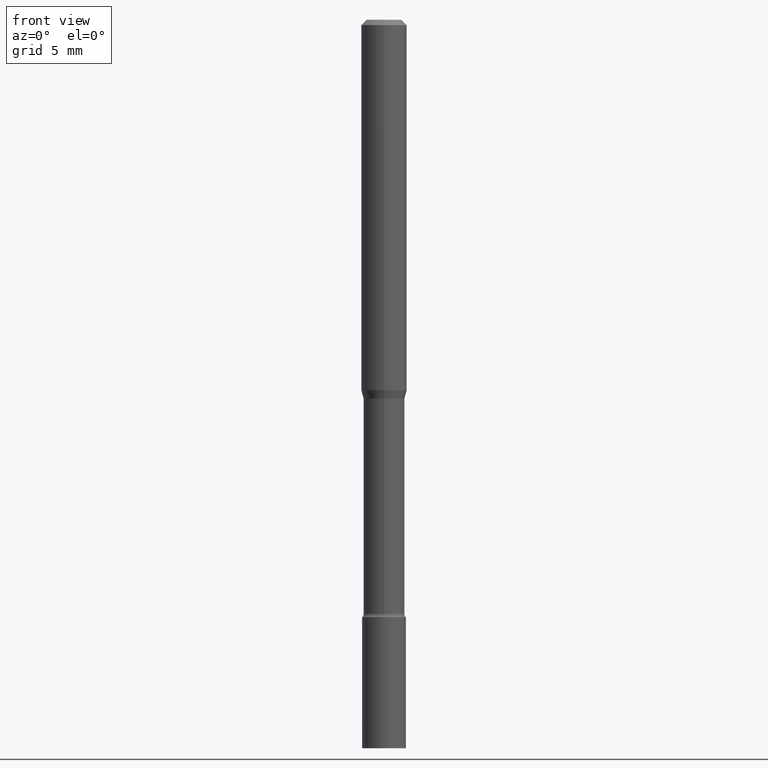
[diagram: clean part render]
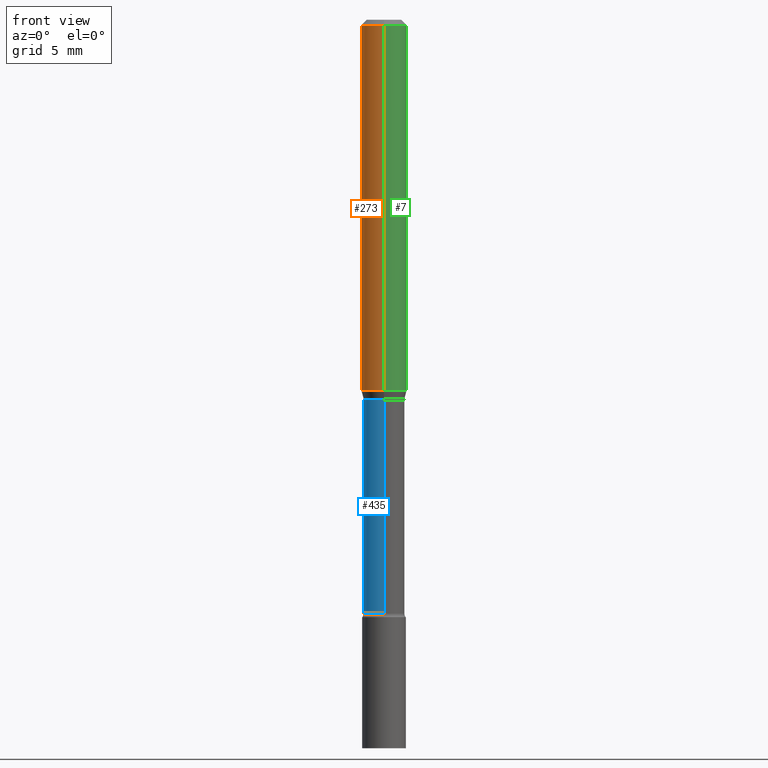
[diagram: same view with three faces highlighted in distinct colors, each labeled with its STEP entity id]
A machine part, front view with three faces highlighted in distinct colors.
Their STEP definitions:

[orange] entity #273 — the highlighted cylindrical surface (edge-blend (fillet) strip) has radius 1.5875 mm, axis along (-0, 0, 1).
#31 = VECTOR ( 'NONE', #113, 39.37007874015748143 ) ;
#48 = LINE ( 'NONE', #346, #31 ) ;
#53 = VERTEX_POINT ( 'NONE', #389 ) ;
#64 = VERTEX_POINT ( 'NONE', #88 ) ;
#75 = FACE_OUTER_BOUND ( 'NONE', #264, .T. ) ;
#76 = EDGE_CURVE ( 'NONE', #53, #87, #207, .T. ) ;
#79 = CARTESIAN_POINT ( 'NONE',  ( 4.440892098500625669E-16, 0.06250000000000000000, -2.181659480106094672E-16 ) ) ;
#87 = VERTEX_POINT ( 'NONE', #159 ) ;
#88 = CARTESIAN_POINT ( 'NONE',  ( -4.364351673553912750E-16, -0.06250000000000005551, -0.01499999999999981209 ) ) ;
#103 = DIRECTION ( 'NONE',  ( -2.446045718082907683E-29, 3.490655168169751476E-15, 1.000000000000000000 ) ) ;
#113 = DIRECTION ( 'NONE',  ( -2.446045718082907683E-29, 3.490655168169751476E-15, 1.000000000000000000 ) ) ;
#127 = ORIENTED_EDGE ( 'NONE', *, *, #76, .T. ) ;
#128 = ORIENTED_EDGE ( 'NONE', *, *, #314, .F. ) ;
#157 = DIRECTION ( 'NONE',  ( -2.446045718082907683E-29, 3.490655168169751476E-15, 1.000000000000000000 ) ) ;
#159 = CARTESIAN_POINT ( 'NONE',  ( -4.364351673553668203E-16, -0.06250000000000355271, -1.017234490073829489 ) ) ;
#162 = CARTESIAN_POINT ( 'NONE',  ( 4.440892098500875639E-16, 0.06249999999999995143, -0.01500000000000024751 ) ) ;
#188 = CARTESIAN_POINT ( 'NONE',  ( 0.000000000000000000, 0.000000000000000000, 0.000000000000000000 ) ) ;
#195 = EDGE_CURVE ( 'NONE', #53, #215, #330, .T. ) ;
#203 = DIRECTION ( 'NONE',  ( -2.446045718082907683E-29, 3.490655168169751476E-15, 1.000000000000000000 ) ) ;
#207 = CIRCLE ( 'NONE', #520, 0.06250000000000000000 ) ;
#215 = VERTEX_POINT ( 'NONE', #162 ) ;
#227 = DIRECTION ( 'NONE',  ( -6.982962677686265922E-15, -1.000000000000000000, 4.370956789862821150E-15 ) ) ;
#264 = EDGE_LOOP ( 'NONE', ( #462, #127, #465, #128 ) ) ;
#270 = EDGE_CURVE ( 'NONE', #87, #64, #48, .T. ) ;
#273 = ADVANCED_FACE ( 'NONE', ( #75 ), #399, .T. ) ;
#280 = DIRECTION ( 'NONE',  ( -2.446045718082907683E-29, 3.490655168169751476E-15, 1.000000000000000000 ) ) ;
#314 = EDGE_CURVE ( 'NONE', #215, #64, #344, .T. ) ;
#316 = AXIS2_PLACEMENT_3D ( 'NONE', #418, #203, #415 ) ;
#330 = LINE ( 'NONE', #79, #395 ) ;
#335 = AXIS2_PLACEMENT_3D ( 'NONE', #188, #157, #458 ) ;
#344 = CIRCLE ( 'NONE', #316, 0.06250000000000000000 ) ;
#346 = CARTESIAN_POINT ( 'NONE',  ( -4.364351673553916201E-16, -0.06250000000000000000, 2.181659480106094672E-16 ) ) ;
#357 = CARTESIAN_POINT ( 'NONE',  ( 2.488202068731341388E-29, -3.550814830016735808E-15, -1.017234490073829711 ) ) ;
#389 = CARTESIAN_POINT ( 'NONE',  ( 4.440892098500872681E-16, 0.06249999999999643341, -1.017234490073830155 ) ) ;
#395 = VECTOR ( 'NONE', #103, 39.37007874015748143 ) ;
#399 = CYLINDRICAL_SURFACE ( 'NONE', #335, 0.06250000000000000000 ) ;
#415 = DIRECTION ( 'NONE',  ( -6.982962677686265922E-15, -1.000000000000000000, 3.483106191921935554E-15 ) ) ;
#418 = CARTESIAN_POINT ( 'NONE',  ( 3.669068577124369092E-31, -5.235982752254638011E-17, -0.01500000000000003067 ) ) ;
#458 = DIRECTION ( 'NONE',  ( -6.982962677686265922E-15, -1.000000000000000000, 3.490655168169751476E-15 ) ) ;
#462 = ORIENTED_EDGE ( 'NONE', *, *, #195, .F. ) ;
#465 = ORIENTED_EDGE ( 'NONE', *, *, #270, .T. ) ;
#520 = AXIS2_PLACEMENT_3D ( 'NONE', #357, #280, #227 ) ;

[blue] entity #435 — the highlighted cylindrical surface (edge-blend (fillet) strip) has radius 1.4326 mm, axis along (-0, 0, 1).
#8 = CARTESIAN_POINT ( 'NONE',  ( 3.987668854432127938E-29, -5.690644615826130312E-15, -1.630251153914436868 ) ) ;
#15 = CIRCLE ( 'NONE', #341, 0.05640000000000004732 ) ;
#35 = VERTEX_POINT ( 'NONE', #41 ) ;
#41 = CARTESIAN_POINT ( 'NONE',  ( 4.007461029687364320E-16, 0.05639999999999635583, -1.041974787463811003 ) ) ;
#57 = CARTESIAN_POINT ( 'NONE',  ( 4.007461029686965945E-16, 0.05640000000000001956, -1.968729514847740461E-16 ) ) ;
#84 = DIRECTION ( 'NONE',  ( -2.446045718082907683E-29, 3.490655168169751476E-15, 1.000000000000000000 ) ) ;
#95 = LINE ( 'NONE', #57, #307 ) ;
#99 = ORIENTED_EDGE ( 'NONE', *, *, #151, .F. ) ;
#123 = CARTESIAN_POINT ( 'NONE',  ( 0.000000000000000000, 0.000000000000000000, 0.000000000000000000 ) ) ;
#141 = AXIS2_PLACEMENT_3D ( 'NONE', #123, #84, #283 ) ;
#151 = EDGE_CURVE ( 'NONE', #446, #35, #95, .T. ) ;
#161 = DIRECTION ( 'NONE',  ( -2.446045718082907683E-29, 3.490655168169751476E-15, 1.000000000000000000 ) ) ;
#168 = EDGE_CURVE ( 'NONE', #446, #181, #15, .T. ) ;
#173 = EDGE_LOOP ( 'NONE', ( #99, #257, #516, #249 ) ) ;
#181 = VERTEX_POINT ( 'NONE', #450 ) ;
#194 = CARTESIAN_POINT ( 'NONE',  ( -3.938390950214798652E-16, -0.05640000000000363473, -1.041974787463810781 ) ) ;
#204 = DIRECTION ( 'NONE',  ( -2.446045718082907683E-29, 3.490655168169751476E-15, 1.000000000000000000 ) ) ;
#216 = CYLINDRICAL_SURFACE ( 'NONE', #141, 0.05640000000000001956 ) ;
#229 = CIRCLE ( 'NONE', #472, 0.05639999999999999181 ) ;
#249 = ORIENTED_EDGE ( 'NONE', *, *, #368, .F. ) ;
#257 = ORIENTED_EDGE ( 'NONE', *, *, #168, .T. ) ;
#278 = CARTESIAN_POINT ( 'NONE',  ( 2.548717967226202365E-29, -3.637174676963129904E-15, -1.041974787463810781 ) ) ;
#283 = DIRECTION ( 'NONE',  ( -6.982962677686265133E-15, -1.000000000000000000, 3.490655168169751476E-15 ) ) ;
#285 = VERTEX_POINT ( 'NONE', #194 ) ;
#307 = VECTOR ( 'NONE', #204, 39.37007874015748143 ) ;
#315 = LINE ( 'NONE', #349, #430 ) ;
#341 = AXIS2_PLACEMENT_3D ( 'NONE', #8, #161, #406 ) ;
#349 = CARTESIAN_POINT ( 'NONE',  ( -3.938390950215055032E-16, -0.05640000000000001956, 1.968729514847740461E-16 ) ) ;
#361 = CARTESIAN_POINT ( 'NONE',  ( 4.135358722124184538E-16, 0.05639999999999435049, -1.630251153914437090 ) ) ;
#367 = DIRECTION ( 'NONE',  ( -6.982962677686265922E-15, -1.000000000000000000, 2.421851058212999609E-15 ) ) ;
#368 = EDGE_CURVE ( 'NONE', #35, #285, #229, .T. ) ;
#400 = EDGE_CURVE ( 'NONE', #181, #285, #315, .T. ) ;
#406 = DIRECTION ( 'NONE',  ( -6.982962677686265133E-15, -1.000000000000000000, 4.843702116425994485E-15 ) ) ;
#430 = VECTOR ( 'NONE', #473, 39.37007874015748143 ) ;
#435 = ADVANCED_FACE ( 'NONE', ( #439 ), #216, .T. ) ;
#439 = FACE_OUTER_BOUND ( 'NONE', #173, .T. ) ;
#446 = VERTEX_POINT ( 'NONE', #361 ) ;
#450 = CARTESIAN_POINT ( 'NONE',  ( -3.938390950214658630E-16, -0.05640000000000573721, -1.630251153914436646 ) ) ;
#452 = DIRECTION ( 'NONE',  ( -2.446045718082907683E-29, 3.490655168169751476E-15, 1.000000000000000000 ) ) ;
#472 = AXIS2_PLACEMENT_3D ( 'NONE', #278, #452, #367 ) ;
#473 = DIRECTION ( 'NONE',  ( -2.446045718082907683E-29, 3.490655168169751476E-15, 1.000000000000000000 ) ) ;
#516 = ORIENTED_EDGE ( 'NONE', *, *, #400, .T. ) ;

[green] entity #7 — the highlighted cylindrical surface (edge-blend (fillet) strip) has radius 1.5875 mm, axis along (-0, 0, 1).
#2 = CARTESIAN_POINT ( 'NONE',  ( 0.000000000000000000, 0.000000000000000000, 0.000000000000000000 ) ) ;
#7 = ADVANCED_FACE ( 'NONE', ( #148 ), #186, .T. ) ;
#12 = DIRECTION ( 'NONE',  ( -2.446045718082907683E-29, 3.490655168169751476E-15, 1.000000000000000000 ) ) ;
#31 = VECTOR ( 'NONE', #113, 39.37007874015748143 ) ;
#48 = LINE ( 'NONE', #346, #31 ) ;
#53 = VERTEX_POINT ( 'NONE', #389 ) ;
#64 = VERTEX_POINT ( 'NONE', #88 ) ;
#70 = ORIENTED_EDGE ( 'NONE', *, *, #319, .F. ) ;
#79 = CARTESIAN_POINT ( 'NONE',  ( 4.440892098500625669E-16, 0.06250000000000000000, -2.181659480106094672E-16 ) ) ;
#87 = VERTEX_POINT ( 'NONE', #159 ) ;
#88 = CARTESIAN_POINT ( 'NONE',  ( -4.364351673553912750E-16, -0.06250000000000005551, -0.01499999999999981209 ) ) ;
#96 = ORIENTED_EDGE ( 'NONE', *, *, #195, .T. ) ;
#103 = DIRECTION ( 'NONE',  ( -2.446045718082907683E-29, 3.490655168169751476E-15, 1.000000000000000000 ) ) ;
#109 = CIRCLE ( 'NONE', #324, 0.06250000000000000000 ) ;
#110 = DIRECTION ( 'NONE',  ( -6.982962677686265922E-15, -1.000000000000000000, 3.490655168169751476E-15 ) ) ;
#113 = DIRECTION ( 'NONE',  ( -2.446045718082907683E-29, 3.490655168169751476E-15, 1.000000000000000000 ) ) ;
#118 = DIRECTION ( 'NONE',  ( -2.446045718082907683E-29, 3.490655168169751476E-15, 1.000000000000000000 ) ) ;
#121 = AXIS2_PLACEMENT_3D ( 'NONE', #2, #317, #110 ) ;
#148 = FACE_OUTER_BOUND ( 'NONE', #370, .T. ) ;
#159 = CARTESIAN_POINT ( 'NONE',  ( -4.364351673553668203E-16, -0.06250000000000355271, -1.017234490073829489 ) ) ;
#162 = CARTESIAN_POINT ( 'NONE',  ( 4.440892098500875639E-16, 0.06249999999999995143, -0.01500000000000024751 ) ) ;
#165 = DIRECTION ( 'NONE',  ( -6.982962677686265922E-15, -1.000000000000000000, 3.483106191921935554E-15 ) ) ;
#170 = ORIENTED_EDGE ( 'NONE', *, *, #491, .T. ) ;
#186 = CYLINDRICAL_SURFACE ( 'NONE', #121, 0.06250000000000000000 ) ;
#195 = EDGE_CURVE ( 'NONE', #53, #215, #330, .T. ) ;
#215 = VERTEX_POINT ( 'NONE', #162 ) ;
#225 = CARTESIAN_POINT ( 'NONE',  ( 2.488202068731341388E-29, -3.550814830016735808E-15, -1.017234490073829711 ) ) ;
#228 = DIRECTION ( 'NONE',  ( -6.982962677686265922E-15, -1.000000000000000000, 4.370956789862821150E-15 ) ) ;
#251 = AXIS2_PLACEMENT_3D ( 'NONE', #225, #118, #228 ) ;
#270 = EDGE_CURVE ( 'NONE', #87, #64, #48, .T. ) ;
#317 = DIRECTION ( 'NONE',  ( -2.446045718082907683E-29, 3.490655168169751476E-15, 1.000000000000000000 ) ) ;
#319 = EDGE_CURVE ( 'NONE', #64, #215, #109, .T. ) ;
#324 = AXIS2_PLACEMENT_3D ( 'NONE', #336, #12, #165 ) ;
#330 = LINE ( 'NONE', #79, #395 ) ;
#336 = CARTESIAN_POINT ( 'NONE',  ( 3.669068577124369092E-31, -5.235982752254638011E-17, -0.01500000000000003067 ) ) ;
#346 = CARTESIAN_POINT ( 'NONE',  ( -4.364351673553916201E-16, -0.06250000000000000000, 2.181659480106094672E-16 ) ) ;
#370 = EDGE_LOOP ( 'NONE', ( #170, #96, #70, #391 ) ) ;
#389 = CARTESIAN_POINT ( 'NONE',  ( 4.440892098500872681E-16, 0.06249999999999643341, -1.017234490073830155 ) ) ;
#391 = ORIENTED_EDGE ( 'NONE', *, *, #270, .F. ) ;
#395 = VECTOR ( 'NONE', #103, 39.37007874015748143 ) ;
#491 = EDGE_CURVE ( 'NONE', #87, #53, #505, .T. ) ;
#505 = CIRCLE ( 'NONE', #251, 0.06250000000000000000 ) ;